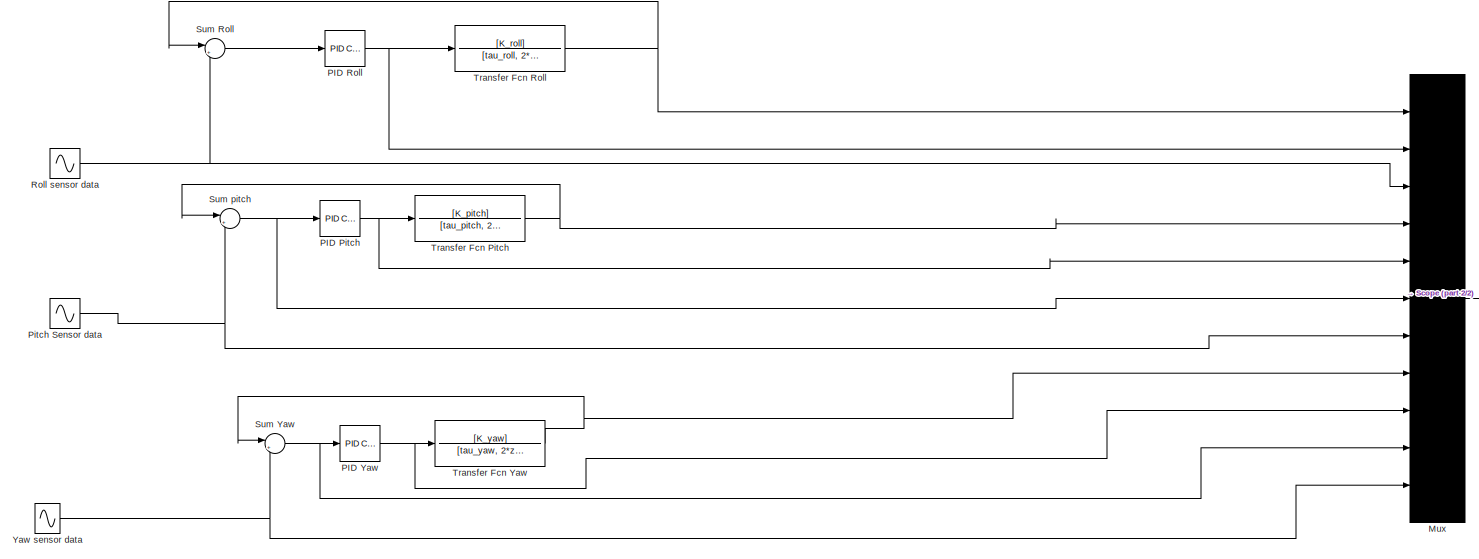
[diagram: root canvas - part 1/2, most of the canvas]
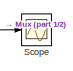
[diagram: root canvas - part 2/2, middle right region]
MODEL slx_e729a64ab4be
KIND model
CONFIG AbsTol = auto
CONFIG EnableMultiTasking = on
CONFIG FixedStep = auto
CONFIG MaxStep = auto
CONFIG MinStep = auto
CONFIG RelTol = 1e-3
CONFIG SampleTimeConstraint = Unconstrained
CONFIG SolverName = ode45
CONFIG StartTime = 0.0
CONFIG StopTime = 10.0
WORKSPACE source: mxarray member
WORKSPACE K_pitch: Simulink.Parameter (value not decoded)
WORKSPACE K_roll: Simulink.Parameter (value not decoded)
WORKSPACE K_yaw: Simulink.Parameter (value not decoded)
WORKSPACE tau_pitch: Simulink.Parameter (value not decoded)
WORKSPACE tau_roll: Simulink.Parameter (value not decoded)
WORKSPACE tau_yaw: Simulink.Parameter (value not decoded)
WORKSPACE zeta_pitch: Simulink.Parameter (value not decoded)
WORKSPACE zeta_roll: Simulink.Parameter (value not decoded)
WORKSPACE zeta_yaw: Simulink.Parameter (value not decoded)
BLOCK [Mux] Mux
  DisplayOption = bar
  Inputs = 11
BLOCK [Reference] PID Pitch  REF=slpidlib/PID Controller
  LibrarySourceBlock = simulink/Continuous/PID Controller
  SourceBlock = slpidlib/PID Controller
  SourceType = PID 1dof
BLOCK [Reference] PID Roll  REF=slpidlib/PID Controller
  LibrarySourceBlock = simulink/Continuous/PID Controller
  SourceBlock = slpidlib/PID Controller
  SourceType = PID 1dof
BLOCK [Reference] PID Yaw  REF=slpidlib/PID Controller
  LibrarySourceBlock = simulink/Continuous/PID Controller
  SourceBlock = slpidlib/PID Controller
  SourceType = PID 1dof
BLOCK [Sin] Pitch Sensor data
  Amplitude = 10 * pi /180
  Frequency = 0.15
  Phase = pi/4
  SampleTime = 0
BLOCK [Sin] Roll sensor data
  Amplitude = 15 * pi /180
  Frequency = 0.1
  SampleTime = 0
BLOCK [Scope] Scope
  Floating = off
  NumInputPorts = 1
  ScopeSpecificationString = Simulink.scopes.TimeScopeBlockCfg('CurrentConfiguration', extmgr.ConfigurationSet(extmgr.Configuration('Core','General UI',true),extmgr.Configuration('Core','Source UI',true),extmgr.Configuration('Sources','WiredSimulink',true),extmgr.Configuration('Visuals','Time Domain',true,'SerializedDisplays',{struct('MinYLimReal','-0.97299','MaxYLimReal','0.35288','YLabelReal','','MinYLimMag','0.00000','MaxY...<+1519ch>
BLOCK [Sum] Sum Roll
  Inputs = |+-
BLOCK [Sum] Sum Yaw
  Inputs = |+-
BLOCK [Sum] Sum pitch
  Inputs = |+-
BLOCK [TransferFcn] Transfer Fcn Pitch
  Denominator = [tau_pitch, 2*zeta_pitch, 1]
  Numerator = [K_pitch]
BLOCK [TransferFcn] Transfer Fcn Roll
  Denominator = [tau_roll, 2*zeta_roll, 1]
  Numerator = [K_roll]
BLOCK [TransferFcn] Transfer Fcn Yaw
  Denominator = [tau_yaw, 2*zeta_yaw, 1]
  Numerator = [K_yaw]
BLOCK [Sin] Yaw sensor data
  Amplitude = 5 * pi /180
  Frequency = 0.2
  Phase = pi/2
  SampleTime = 0
LINE Mux:1 -> Scope:1
NET PID Pitch:1 -> Mux:5, Transfer Fcn Pitch:1
NET PID Roll:1 -> Mux:2, Transfer Fcn Roll:1
NET PID Yaw:1 -> Mux:9, Transfer Fcn Yaw:1
NET Pitch Sensor data:1 -> Mux:7, Sum pitch:2
NET Roll sensor data:1 -> Mux:3, Sum Roll:2
LINE Sum Roll:1 -> PID Roll:1
NET Sum Yaw:1 -> Mux:10, PID Yaw:1
NET Sum pitch:1 -> Mux:6, PID Pitch:1
NET Transfer Fcn Pitch:1 -> Mux:4, Sum pitch:1
NET Transfer Fcn Roll:1 -> Mux:1, Sum Roll:1
NET Transfer Fcn Yaw:1 -> Mux:8, Sum Yaw:1
NET Yaw sensor data:1 -> Mux:11, Sum Yaw:2
note: NET lines group one-source signal fan-out (src -> all destinations, sorted); 1:1 wires keep LINE
